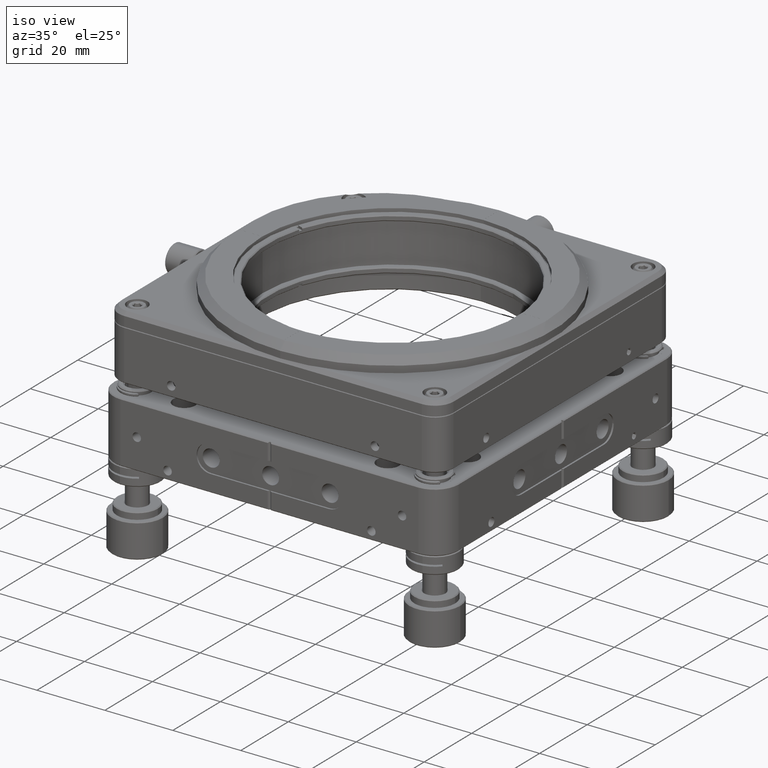
[diagram: clean part render]
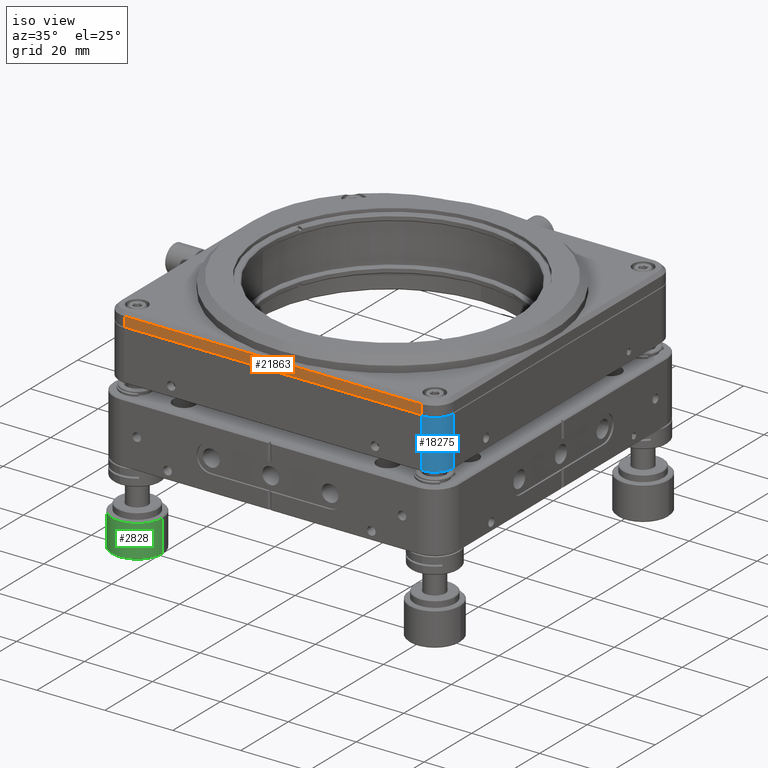
[diagram: same view with three faces highlighted in distinct colors, each labeled with its STEP entity id]
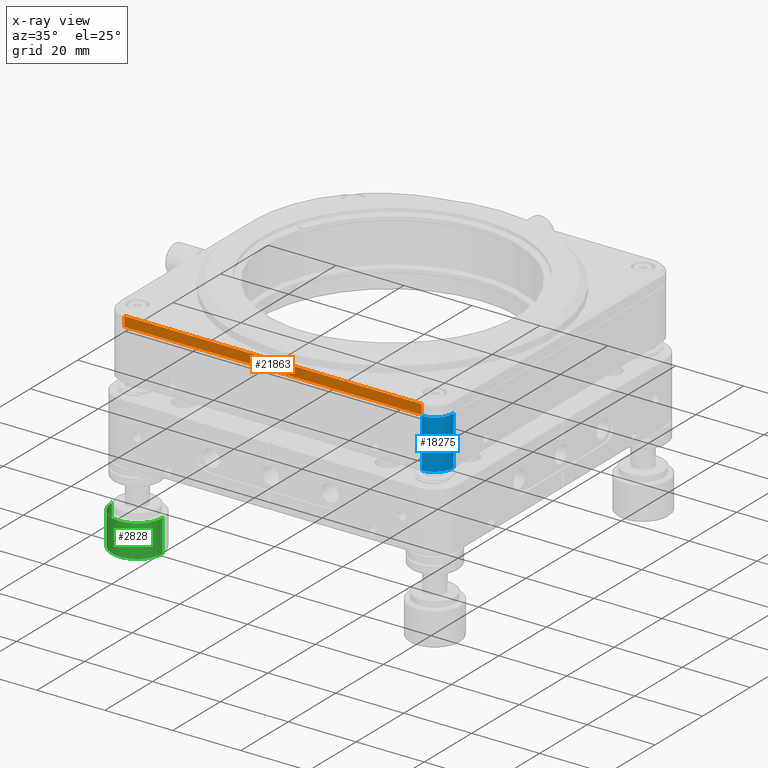
[diagram: x-ray of the same camera — body ghosted, the three highlighted faces saturated]
A machine part, iso view with three faces highlighted in distinct colors.
The next image is the same camera in x-ray (body ghosted, the three faces saturated) — at least one of them is partly hidden behind the body in this view.
Their STEP definitions:

[orange] entity #21863 — the highlighted planar face has unit normal (-0, 1, 0).
#1274 = CARTESIAN_POINT ( 'NONE',  ( 43.80000000000001137, -49.30000000000001137, 27.50000000000000000 ) ) ;
#3158 = DIRECTION ( 'NONE',  ( -1.000000000000000000, -1.407483550488281676E-16, 0.000000000000000000 ) ) ;
#3167 = EDGE_CURVE ( 'NONE', #44529, #6211, #20476, .T. ) ;
#4373 = VERTEX_POINT ( 'NONE', #33651 ) ;
#6211 = VERTEX_POINT ( 'NONE', #14177 ) ;
#6586 = LINE ( 'NONE', #18483, #33762 ) ;
#7025 = DIRECTION ( 'NONE',  ( -1.407483550488281676E-16, 1.000000000000000000, 0.000000000000000000 ) ) ;
#7119 = EDGE_CURVE ( 'NONE', #4373, #44529, #30676, .T. ) ;
#7412 = ORIENTED_EDGE ( 'NONE', *, *, #3167, .F. ) ;
#7602 = ORIENTED_EDGE ( 'NONE', *, *, #32843, .T. ) ;
#8157 = CARTESIAN_POINT ( 'NONE',  ( -43.79999999999998295, -49.30000000000001847, 30.39999999999997371 ) ) ;
#8874 = CARTESIAN_POINT ( 'NONE',  ( 43.80000000000000426, -49.30000000000000426, 31.39999999999999858 ) ) ;
#9549 = CARTESIAN_POINT ( 'NONE',  ( -49.29999999999998295, -49.30000000000001847, 30.39999999999997371 ) ) ;
#10189 = FACE_OUTER_BOUND ( 'NONE', #41868, .T. ) ;
#10673 = VECTOR ( 'NONE', #16141, 1000.000000000000000 ) ;
#11186 = ORIENTED_EDGE ( 'NONE', *, *, #22477, .F. ) ;
#14177 = CARTESIAN_POINT ( 'NONE',  ( 43.79999999999999716, -49.29999999998992877, 30.39999999998851976 ) ) ;
#14454 = AXIS2_PLACEMENT_3D ( 'NONE', #36148, #7025, #3158 ) ;
#16141 = DIRECTION ( 'NONE',  ( 1.000000000000000000, 1.407483550488281676E-16, -0.000000000000000000 ) ) ;
#16642 = LINE ( 'NONE', #8874, #16838 ) ;
#16838 = VECTOR ( 'NONE', #27990, 1000.000000000000000 ) ;
#18483 = CARTESIAN_POINT ( 'NONE',  ( 2.125036258025834758E-14, -49.30000000000001847, 27.50000000000000000 ) ) ;
#20476 = LINE ( 'NONE', #9549, #10673 ) ;
#21863 = ADVANCED_FACE ( 'NONE', ( #10189 ), #24954, .F. ) ;
#22357 = DIRECTION ( 'NONE',  ( 1.000000000000000000, 0.000000000000000000, 0.000000000000000000 ) ) ;
#22477 = EDGE_CURVE ( 'NONE', #6211, #36144, #16642, .T. ) ;
#23698 = VECTOR ( 'NONE', #30422, 1000.000000000000000 ) ;
#24954 = PLANE ( 'NONE',  #14454 ) ;
#27254 = CARTESIAN_POINT ( 'NONE',  ( -43.79999999999998295, -49.30000000000001847, 31.39999999999999858 ) ) ;
#27990 = DIRECTION ( 'NONE',  ( 0.000000000000000000, 0.000000000000000000, -1.000000000000000000 ) ) ;
#30422 = DIRECTION ( 'NONE',  ( 0.000000000000000000, 0.000000000000000000, 1.000000000000000000 ) ) ;
#30676 = LINE ( 'NONE', #27254, #23698 ) ;
#32843 = EDGE_CURVE ( 'NONE', #4373, #36144, #6586, .T. ) ;
#33571 = ORIENTED_EDGE ( 'NONE', *, *, #7119, .F. ) ;
#33651 = CARTESIAN_POINT ( 'NONE',  ( -43.79999999999998295, -49.30000000000001847, 27.50000000000000000 ) ) ;
#33762 = VECTOR ( 'NONE', #22357, 1000.000000000000000 ) ;
#36144 = VERTEX_POINT ( 'NONE', #1274 ) ;
#36148 = CARTESIAN_POINT ( 'NONE',  ( -49.29999999999998295, -49.30000000000001847, 31.39999999999999858 ) ) ;
#41868 = EDGE_LOOP ( 'NONE', ( #7412, #33571, #7602, #11186 ) ) ;
#44529 = VERTEX_POINT ( 'NONE', #8157 ) ;

[blue] entity #18275 — the highlighted cylindrical surface (edge-blend (fillet) strip) has radius 5.5 mm, axis along (0, 0, -1).
#255 = VERTEX_POINT ( 'NONE', #5713 ) ;
#311 = ORIENTED_EDGE ( 'NONE', *, *, #43139, .T. ) ;
#5271 = ORIENTED_EDGE ( 'NONE', *, *, #25802, .T. ) ;
#5713 = CARTESIAN_POINT ( 'NONE',  ( 49.30000000000082139, -43.79999999999952820, 27.25000000000009237 ) ) ;
#6510 = AXIS2_PLACEMENT_3D ( 'NONE', #22041, #40699, #7495 ) ;
#7495 = DIRECTION ( 'NONE',  ( 0.000000000000000000, -1.000000000000000000, 0.000000000000000000 ) ) ;
#7742 = DIRECTION ( 'NONE',  ( 4.020564883593777838E-17, 1.108837722244320521E-17, -1.000000000000000000 ) ) ;
#7975 = DIRECTION ( 'NONE',  ( 4.020564883593777838E-17, 1.108837722244320521E-17, -1.000000000000000000 ) ) ;
#8827 = LINE ( 'NONE', #41318, #24177 ) ;
#9591 = CIRCLE ( 'NONE', #6510, 5.499999999999998224 ) ;
#10010 = CIRCLE ( 'NONE', #16160, 5.500000000007547740 ) ;
#11729 = CARTESIAN_POINT ( 'NONE',  ( 43.80000000000083560, -49.29999999999133564, 12.74999999998297362 ) ) ;
#14163 = EDGE_CURVE ( 'NONE', #19810, #255, #8827, .T. ) ;
#15514 = CARTESIAN_POINT ( 'NONE',  ( 49.30000000000271143, -43.79999999999952820, 12.74999999999867306 ) ) ;
#16160 = AXIS2_PLACEMENT_3D ( 'NONE', #23479, #7975, #23032 ) ;
#16573 = CARTESIAN_POINT ( 'NONE',  ( 43.80000000000082139, -43.79999999999952820, 27.50000000000011369 ) ) ;
#16660 = VERTEX_POINT ( 'NONE', #11729 ) ;
#17989 = VERTEX_POINT ( 'NONE', #40356 ) ;
#18275 = ADVANCED_FACE ( 'NONE', ( #23843 ), #42707, .T. ) ;
#19810 = VERTEX_POINT ( 'NONE', #15514 ) ;
#22041 = CARTESIAN_POINT ( 'NONE',  ( 43.80000000000082139, -43.79999999999952820, 27.25000000000009237 ) ) ;
#22763 = LINE ( 'NONE', #30263, #43959 ) ;
#23032 = DIRECTION ( 'NONE',  ( 0.000000000000000000, 1.000000000000000000, 0.000000000000000000 ) ) ;
#23479 = CARTESIAN_POINT ( 'NONE',  ( 43.80000000000082139, -43.79999999999952820, 12.74999999999420375 ) ) ;
#23843 = FACE_OUTER_BOUND ( 'NONE', #30843, .T. ) ;
#24177 = VECTOR ( 'NONE', #35692, 1000.000000000000000 ) ;
#25802 = EDGE_CURVE ( 'NONE', #255, #17989, #9591, .T. ) ;
#27211 = DIRECTION ( 'NONE',  ( 4.020564883593777838E-17, 1.108837722244320521E-17, -1.000000000000000000 ) ) ;
#30263 = CARTESIAN_POINT ( 'NONE',  ( 43.80000000000082139, -49.29999999999952820, 27.50000000000011369 ) ) ;
#30843 = EDGE_LOOP ( 'NONE', ( #40507, #5271, #311, #42219 ) ) ;
#35692 = DIRECTION ( 'NONE',  ( -4.020564883593777838E-17, -1.108837722244320521E-17, 1.000000000000000000 ) ) ;
#40356 = CARTESIAN_POINT ( 'NONE',  ( 43.80000000000082139, -49.29999999998945270, 27.25000000001237410 ) ) ;
#40507 = ORIENTED_EDGE ( 'NONE', *, *, #14163, .T. ) ;
#40699 = DIRECTION ( 'NONE',  ( 4.020564883593777838E-17, 1.108837722244320521E-17, -1.000000000000000000 ) ) ;
#41318 = CARTESIAN_POINT ( 'NONE',  ( 49.30000000000082139, -43.79999999999952820, 27.50000000000011369 ) ) ;
#42219 = ORIENTED_EDGE ( 'NONE', *, *, #45241, .F. ) ;
#42707 = CYLINDRICAL_SURFACE ( 'NONE', #46711, 5.499999999999998224 ) ;
#43139 = EDGE_CURVE ( 'NONE', #17989, #16660, #22763, .T. ) ;
#43959 = VECTOR ( 'NONE', #7742, 1000.000000000000000 ) ;
#45241 = EDGE_CURVE ( 'NONE', #19810, #16660, #10010, .T. ) ;
#46102 = DIRECTION ( 'NONE',  ( 0.000000000000000000, -1.000000000000000000, 0.000000000000000000 ) ) ;
#46711 = AXIS2_PLACEMENT_3D ( 'NONE', #16573, #27211, #46102 ) ;

[green] entity #2828 — the highlighted cylindrical surface (edge-blend (fillet) strip) has radius 7.5 mm, axis along (-0, -0, -1).
#529 = VERTEX_POINT ( 'NONE', #22197 ) ;
#553 = EDGE_LOOP ( 'NONE', ( #45227, #16601, #16957, #38930 ) ) ;
#2354 = FACE_OUTER_BOUND ( 'NONE', #553, .T. ) ;
#2828 = ADVANCED_FACE ( 'NONE', ( #2354 ), #35593, .T. ) ;
#3699 = AXIS2_PLACEMENT_3D ( 'NONE', #27298, #34628, #46437 ) ;
#8701 = AXIS2_PLACEMENT_3D ( 'NONE', #47489, #14338, #29105 ) ;
#8860 = CIRCLE ( 'NONE', #28972, 7.500000000000000000 ) ;
#8986 = LINE ( 'NONE', #9706, #16754 ) ;
#9706 = CARTESIAN_POINT ( 'NONE',  ( -36.29999999999999005, -43.79999999999998295, -23.16185424949236094 ) ) ;
#12864 = VECTOR ( 'NONE', #24776, 1000.000000000000000 ) ;
#14293 = EDGE_CURVE ( 'NONE', #17471, #529, #29612, .T. ) ;
#14338 = DIRECTION ( 'NONE',  ( -0.000000000000000000, -0.000000000000000000, 1.000000000000000000 ) ) ;
#16439 = CARTESIAN_POINT ( 'NONE',  ( -43.79999999999999005, -43.79999999999998295, -23.41185424949235738 ) ) ;
#16601 = ORIENTED_EDGE ( 'NONE', *, *, #27126, .T. ) ;
#16754 = VECTOR ( 'NONE', #20870, 1000.000000000000000 ) ;
#16957 = ORIENTED_EDGE ( 'NONE', *, *, #32776, .T. ) ;
#17471 = VERTEX_POINT ( 'NONE', #25193 ) ;
#20870 = DIRECTION ( 'NONE',  ( -0.000000000000000000, -0.000000000000000000, -1.000000000000000000 ) ) ;
#21841 = EDGE_CURVE ( 'NONE', #30927, #529, #8986, .T. ) ;
#22197 = CARTESIAN_POINT ( 'NONE',  ( -36.29999999999999005, -43.79999999999998295, -32.91185424949237159 ) ) ;
#23016 = DIRECTION ( 'NONE',  ( 0.000000000000000000, 0.000000000000000000, -1.000000000000000000 ) ) ;
#24776 = DIRECTION ( 'NONE',  ( -0.000000000000000000, -0.000000000000000000, -1.000000000000000000 ) ) ;
#25193 = CARTESIAN_POINT ( 'NONE',  ( -51.29999999999999005, -43.79999999999998295, -32.91185424949237159 ) ) ;
#26758 = CARTESIAN_POINT ( 'NONE',  ( -51.29999999999999005, -43.79999999999998295, -23.41185424949235738 ) ) ;
#27126 = EDGE_CURVE ( 'NONE', #30927, #45839, #8860, .T. ) ;
#27298 = CARTESIAN_POINT ( 'NONE',  ( -43.79999999999999005, -43.79999999999998295, -23.16185424949236094 ) ) ;
#28972 = AXIS2_PLACEMENT_3D ( 'NONE', #16439, #23016, #34152 ) ;
#29105 = DIRECTION ( 'NONE',  ( 1.000000000000000000, 0.000000000000000000, 0.000000000000000000 ) ) ;
#29612 = CIRCLE ( 'NONE', #8701, 7.500000000000000000 ) ;
#30927 = VERTEX_POINT ( 'NONE', #42270 ) ;
#32051 = CARTESIAN_POINT ( 'NONE',  ( -51.29999999999999005, -43.79999999999998295, -23.16185424949236094 ) ) ;
#32776 = EDGE_CURVE ( 'NONE', #45839, #17471, #35486, .T. ) ;
#34152 = DIRECTION ( 'NONE',  ( 1.000000000000000000, 0.000000000000000000, 0.000000000000000000 ) ) ;
#34628 = DIRECTION ( 'NONE',  ( -0.000000000000000000, -0.000000000000000000, -1.000000000000000000 ) ) ;
#35486 = LINE ( 'NONE', #32051, #12864 ) ;
#35593 = CYLINDRICAL_SURFACE ( 'NONE', #3699, 7.500000000000000000 ) ;
#38930 = ORIENTED_EDGE ( 'NONE', *, *, #14293, .T. ) ;
#42270 = CARTESIAN_POINT ( 'NONE',  ( -36.29999999999999005, -43.79999999999998295, -23.41185424949235738 ) ) ;
#45227 = ORIENTED_EDGE ( 'NONE', *, *, #21841, .F. ) ;
#45839 = VERTEX_POINT ( 'NONE', #26758 ) ;
#46437 = DIRECTION ( 'NONE',  ( -1.000000000000000000, 0.000000000000000000, 0.000000000000000000 ) ) ;
#47489 = CARTESIAN_POINT ( 'NONE',  ( -43.79999999999999005, -43.79999999999998295, -32.91185424949237159 ) ) ;